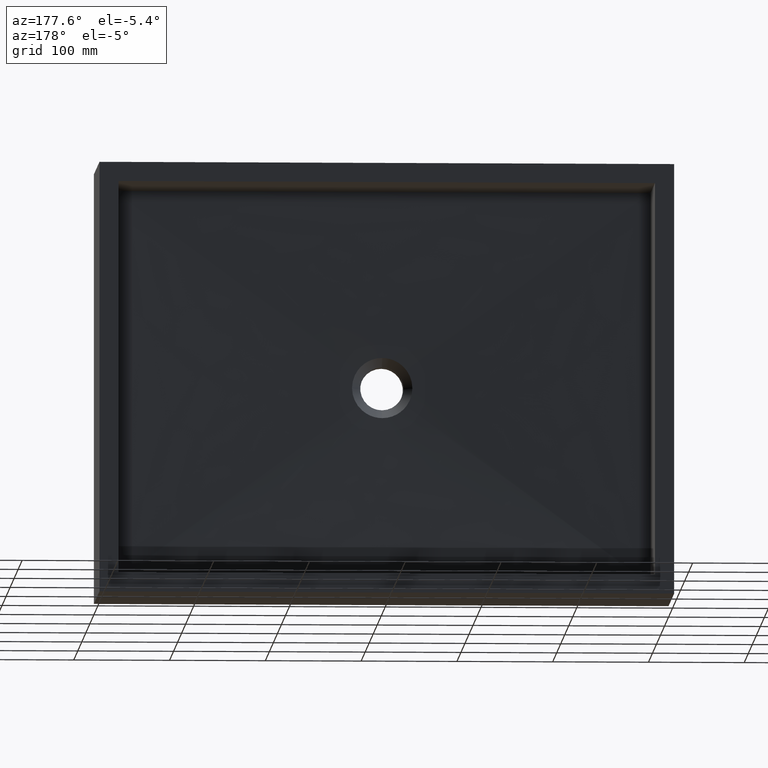
[diagram: clean part render]
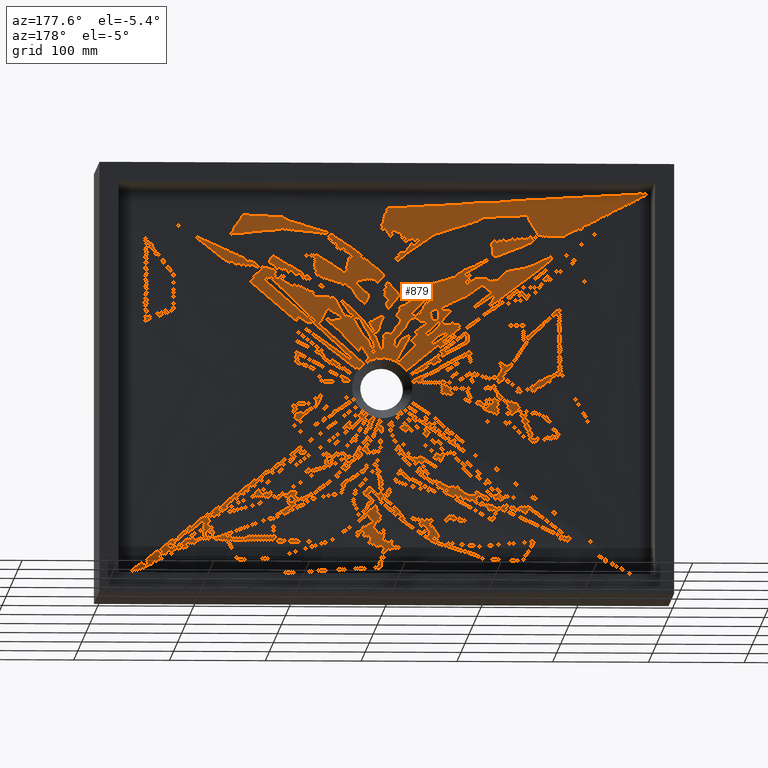
[diagram: same view with one face highlighted and labeled with its STEP entity id]
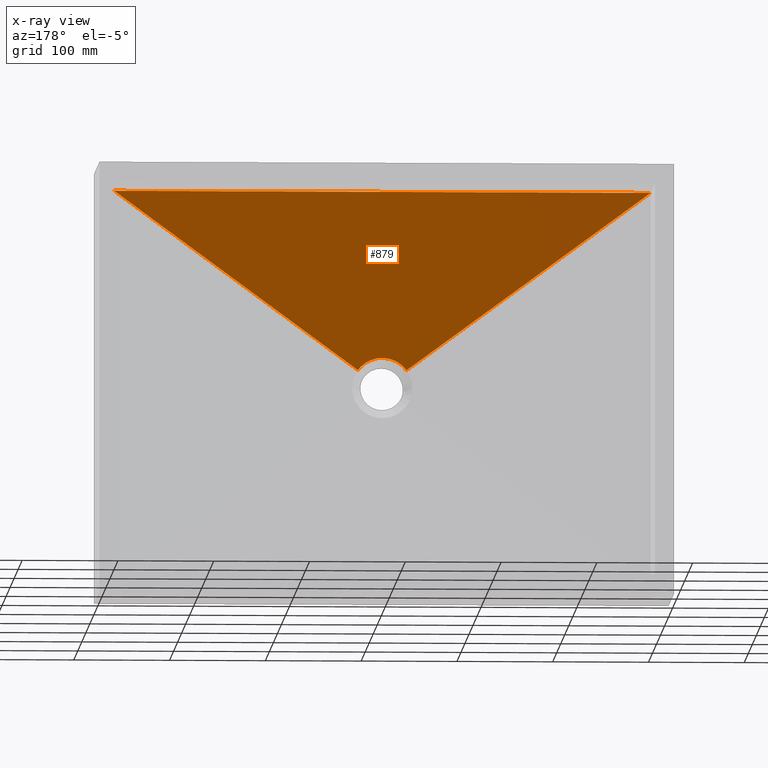
[diagram: x-ray of the same camera — body ghosted, the highlighted face saturated]
A machine part, auxiliary view. The second image highlights one B-rep face of the part: STEP entity #879.
The next image is the same camera in x-ray: the body ghosted, the highlighted face saturated — about 0% of this face is hidden behind the body in this view.
In plain terms, the highlighted face is a freeform B-spline surface patch.
Its self-contained STEP definition (entity closure, byte-faithful):
#1 = FACE_OUTER_BOUND ( 'NONE', #872, .T. ) ;
#28 = CARTESIAN_POINT ( 'NONE',  ( 325.4161788348337200, 25.00000000000000000, -206.3917262102110300 ) ) ;
#30 = CARTESIAN_POINT ( 'NONE',  ( 302.6629322622977700, 25.00000000000000400, -193.5000000000000900 ) ) ;
#42 = CARTESIAN_POINT ( 'NONE',  ( 287.1875711167857600, 25.00000000000000400, -196.1148533879353100 ) ) ;
#47 = CARTESIAN_POINT ( 'NONE',  ( 275.8350148541843500, 25.00000000000000400, -204.6827787325278500 ) ) ;
#86 = CARTESIAN_POINT ( 'NONE',  ( 322.6745798683372200, 25.00000000000000400, -203.0107982883843400 ) ) ;
#101 = CARTESIAN_POINT ( 'NONE',  ( 325.4161788348337200, 25.00000000000000000, -206.3917262102110300 ) ) ;
#107 = CARTESIAN_POINT ( 'NONE',  ( 310.4002115739543200, 25.00000000000000400, -195.1511450566321200 ) ) ;
#120 = CARTESIAN_POINT ( 'NONE',  ( 416.6666666666666300, 30.00000000000000000, -19.99999999999999600 ) ) ;
#131 = CARTESIAN_POINT ( 'NONE',  ( 282.7883696796761200, 25.00000000000000400, -198.4996262214209500 ) ) ;
#162 = CARTESIAN_POINT ( 'NONE',  ( 274.5838211651662800, 25.00000000000000000, -206.3917262102110000 ) ) ;
#166 = VERTEX_POINT ( 'NONE', #28 ) ;
#175 = LINE ( 'NONE', #220, #639 ) ;
#185 = CARTESIAN_POINT ( 'NONE',  ( 580.0000000000000000, 30.00000000000000400, -20.00000000000000000 ) ) ;
#194 = CARTESIAN_POINT ( 'NONE',  ( 302.6629322622977700, 25.00000000000000400, -193.5000000000000900 ) ) ;
#200 = LINE ( 'NONE', #301, #896 ) ;
#220 = CARTESIAN_POINT ( 'NONE',  ( 299.9999999999999400, 30.00000000000000000, -19.99999999999999600 ) ) ;
#232 = CARTESIAN_POINT ( 'NONE',  ( 287.1875711167857600, 25.00000000000000400, -196.1148533879353100 ) ) ;
#238 = B_SPLINE_CURVE_WITH_KNOTS ( 'NONE', 3,
 ( #426, #47, #798, #907, #131, #232, #800, #715, #671, #30, #285, #1066, #1091, #988, #547, #1072, #686, #1044 ),
 .UNSPECIFIED., .F., .F.,
 ( 4, 2, 2, 2, 2, 2, 2, 2, 4 ),
 ( 0.0000000000000000000, 0.1250000000000000000, 0.2500000000000000000, 0.3750000000000000000, 0.5000000000000000000, 0.6250000000000000000, 0.7500000000000000000, 0.8750000000000000000, 1.000000000000000000 ),
 .UNSPECIFIED. ) ;
#247 = CARTESIAN_POINT ( 'NONE',  ( 20.00000000000000000, 30.00000000000000400, -20.00000000000000000 ) ) ;
#251 = CARTESIAN_POINT ( 'NONE',  ( 43.33333333333332900, 30.00000000000000400, -19.99999999999999600 ) ) ;
#256 = CARTESIAN_POINT ( 'NONE',  ( 317.2116303203239900, 24.99999999999999600, -198.4996262214210100 ) ) ;
#259 = VECTOR ( 'NONE', #769, 1000.000000000000000 ) ;
#285 = CARTESIAN_POINT ( 'NONE',  ( 305.3245307029947100, 25.00000000000000400, -193.8428513017301800 ) ) ;
#289 = CARTESIAN_POINT ( 'NONE',  ( 206.6666666666666300, 30.00000000000000000, -19.99999999999999600 ) ) ;
#301 = CARTESIAN_POINT ( 'NONE',  ( 452.7080894174168300, 27.50000000000000400, -113.1958631051055200 ) ) ;
#312 = ORIENTED_EDGE ( 'NONE', *, *, #963, .T. ) ;
#316 = CARTESIAN_POINT ( 'NONE',  ( 147.2919105825831400, 27.50000000000000400, -113.1958631051055000 ) ) ;
#317 = ORIENTED_EDGE ( 'NONE', *, *, #1122, .T. ) ;
#323 = CARTESIAN_POINT ( 'NONE',  ( 305.3245307029947100, 25.00000000000000400, -193.8428513017301800 ) ) ;
#333 = CARTESIAN_POINT ( 'NONE',  ( 66.66666666666665700, 30.00000000000000400, -19.99999999999999600 ) ) ;
#351 = CARTESIAN_POINT ( 'NONE',  ( 533.3333333333332600, 30.00000000000000000, -19.99999999999999600 ) ) ;
#378 = VERTEX_POINT ( 'NONE', #804 ) ;
#417 = CARTESIAN_POINT ( 'NONE',  ( 113.3333333333333100, 30.00000000000000000, -19.99999999999999600 ) ) ;
#421 = CARTESIAN_POINT ( 'NONE',  ( 463.3333333333332600, 30.00000000000000000, -19.99999999999999600 ) ) ;
#426 = CARTESIAN_POINT ( 'NONE',  ( 274.5838211651662800, 25.00000000000000000, -206.3917262102110000 ) ) ;
#441 = CARTESIAN_POINT ( 'NONE',  ( 346.6666666666665700, 30.00000000000000000, -19.99999999999999600 ) ) ;
#477 = CARTESIAN_POINT ( 'NONE',  ( 183.3333333333332900, 30.00000000000000000, -19.99999999999999600 ) ) ;
#480 = LINE ( 'NONE', #316, #259 ) ;
#498 = CARTESIAN_POINT ( 'NONE',  ( 323.3333333333332600, 30.00000000000000000, -19.99999999999999600 ) ) ;
#505 = CARTESIAN_POINT ( 'NONE',  ( 294.6754692970052900, 25.00000000000000400, -193.8428513017301500 ) ) ;
#510 = CARTESIAN_POINT ( 'NONE',  ( 319.1984039612434600, 25.00000000000000400, -199.9184759342533100 ) ) ;
#527 = CARTESIAN_POINT ( 'NONE',  ( 324.1649851458154800, 25.00000000000000400, -204.6827787325278200 ) ) ;
#547 = CARTESIAN_POINT ( 'NONE',  ( 319.1984039612434600, 25.00000000000000400, -199.9184759342533100 ) ) ;
#549 = CARTESIAN_POINT ( 'NONE',  ( 393.3333333333332600, 30.00000000000000000, -19.99999999999999600 ) ) ;
#561 = CARTESIAN_POINT ( 'NONE',  ( 289.5997884260458500, 25.00000000000000400, -195.1511450566320900 ) ) ;
#620 = CARTESIAN_POINT ( 'NONE',  ( 556.6666666666666300, 30.00000000000000000, -19.99999999999999600 ) ) ;
#639 = VECTOR ( 'NONE', #1057, 1000.000000000000000 ) ;
#642 = CARTESIAN_POINT ( 'NONE',  ( 312.8124288832143000, 25.00000000000000000, -196.1148533879353100 ) ) ;
#655 = CARTESIAN_POINT ( 'NONE',  ( 20.00000000000000000, 30.00000000000000400, -20.00000000000000000 ) ) ;
#671 = CARTESIAN_POINT ( 'NONE',  ( 297.3370677377022800, 25.00000000000000400, -193.5000000000000600 ) ) ;
#674 = ORIENTED_EDGE ( 'NONE', *, *, #841, .T. ) ;
#686 = CARTESIAN_POINT ( 'NONE',  ( 324.1649851458154800, 25.00000000000000400, -204.6827787325278200 ) ) ;
#715 = CARTESIAN_POINT ( 'NONE',  ( 294.6754692970052900, 25.00000000000000400, -193.8428513017301500 ) ) ;
#769 = DIRECTION ( 'NONE',  ( 0.8067615303477273500, -0.01584471327862435300, -0.5906646918617289900 ) ) ;
#770 = CARTESIAN_POINT ( 'NONE',  ( 275.8350148541843500, 25.00000000000000400, -204.6827787325278500 ) ) ;
#798 = CARTESIAN_POINT ( 'NONE',  ( 277.3254201316627800, 25.00000000000000400, -203.0107982883843400 ) ) ;
#800 = CARTESIAN_POINT ( 'NONE',  ( 289.5997884260458500, 25.00000000000000400, -195.1511450566320900 ) ) ;
#804 = CARTESIAN_POINT ( 'NONE',  ( 274.5838211651662800, 25.00000000000000000, -206.3917262102110000 ) ) ;
#826 = CARTESIAN_POINT ( 'NONE',  ( 136.6666666666666600, 30.00000000000000000, -19.99999999999999600 ) ) ;
#841 = EDGE_CURVE ( 'NONE', #1115, #378, #480, .T. ) ;
#852 = CARTESIAN_POINT ( 'NONE',  ( 580.0000000000000000, 30.00000000000000400, -20.00000000000000000 ) ) ;
#866 = CARTESIAN_POINT ( 'NONE',  ( 277.3254201316627800, 25.00000000000000400, -203.0107982883843400 ) ) ;
#872 = EDGE_LOOP ( 'NONE', ( #317, #312, #1097, #674 ) ) ;
#879 = ADVANCED_FACE ( 'NONE', ( #1 ), #1103, .T. ) ;
#896 = VECTOR ( 'NONE', #916, 1000.000000000000100 ) ;
#907 = CARTESIAN_POINT ( 'NONE',  ( 280.8015960387564300, 24.99999999999999600, -199.9184759342531700 ) ) ;
#916 = DIRECTION ( 'NONE',  ( 0.8067615303477272400, 0.01584471327862434900, 0.5906646918617291000 ) ) ;
#951 = CARTESIAN_POINT ( 'NONE',  ( 280.8015960387564300, 24.99999999999999600, -199.9184759342531700 ) ) ;
#963 = EDGE_CURVE ( 'NONE', #166, #1080, #200, .T. ) ;
#988 = CARTESIAN_POINT ( 'NONE',  ( 317.2116303203239900, 24.99999999999999600, -198.4996262214210100 ) ) ;
#1031 = CARTESIAN_POINT ( 'NONE',  ( 297.3370677377022800, 25.00000000000000400, -193.5000000000000600 ) ) ;
#1035 = CARTESIAN_POINT ( 'NONE',  ( 282.7883696796761200, 25.00000000000000400, -198.4996262214209500 ) ) ;
#1042 = CARTESIAN_POINT ( 'NONE',  ( 276.6666666666666300, 30.00000000000000000, -20.00000000000000000 ) ) ;
#1044 = CARTESIAN_POINT ( 'NONE',  ( 325.4161788348337200, 25.00000000000000000, -206.3917262102110300 ) ) ;
#1057 = DIRECTION ( 'NONE',  ( -1.000000000000000000, -0.0000000000000000000, -1.486905836551549300E-016 ) ) ;
#1066 = CARTESIAN_POINT ( 'NONE',  ( 310.4002115739543200, 25.00000000000000400, -195.1511450566321200 ) ) ;
#1072 = CARTESIAN_POINT ( 'NONE',  ( 322.6745798683372200, 25.00000000000000400, -203.0107982883843400 ) ) ;
#1074 = EDGE_CURVE ( 'NONE', #1080, #1115, #175, .T. ) ;
#1080 = VERTEX_POINT ( 'NONE', #852 ) ;
#1091 = CARTESIAN_POINT ( 'NONE',  ( 312.8124288832143000, 25.00000000000000000, -196.1148533879353100 ) ) ;
#1097 = ORIENTED_EDGE ( 'NONE', *, *, #1074, .T. ) ;
#1103 = B_SPLINE_SURFACE_WITH_KNOTS ( 'NONE', 3, 1, ( 
 ( #162, #247 ),
 ( #770, #251 ),
 ( #866, #333 ),
 ( #951, #417 ),
 ( #1035, #826 ),
 ( #42, #477 ),
 ( #561, #289 ),
 ( #505, #1127 ),
 ( #1031, #1042 ),
 ( #194, #498 ),
 ( #323, #441 ),
 ( #107, #549 ),
 ( #642, #120 ),
 ( #256, #421 ),
 ( #510, #1129 ),
 ( #86, #351 ),
 ( #527, #620 ),
 ( #101, #185 ) ),
 .UNSPECIFIED., .F., .F., .F.,
 ( 4, 2, 2, 2, 2, 2, 2, 2, 4 ),
 ( 2, 2 ),
 ( 0.0000000000000000000, 0.1250000000000000000, 0.2500000000000000000, 0.3750000000000000000, 0.5000000000000000000, 0.6250000000000000000, 0.7500000000000000000, 0.8750000000000000000, 1.000000000000000000 ),
 ( 0.0000000000000000000, 1.000000000000000000 ),
 .UNSPECIFIED. ) ;
#1115 = VERTEX_POINT ( 'NONE', #655 ) ;
#1122 = EDGE_CURVE ( 'NONE', #378, #166, #238, .T. ) ;
#1127 = CARTESIAN_POINT ( 'NONE',  ( 253.3333333333332900, 30.00000000000000000, -19.99999999999999600 ) ) ;
#1129 = CARTESIAN_POINT ( 'NONE',  ( 486.6666666666665700, 30.00000000000000000, -19.99999999999999600 ) ) ;